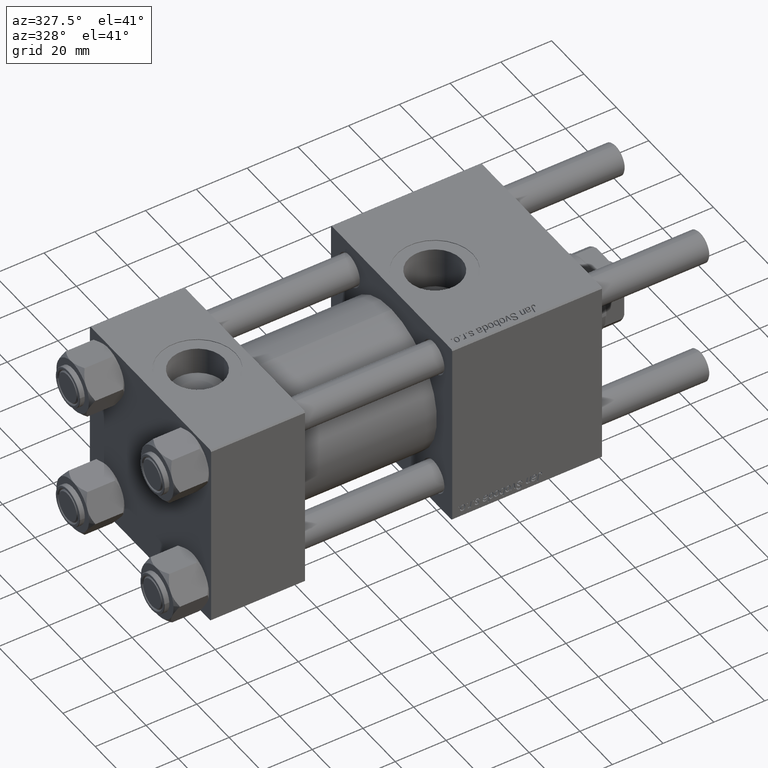
[diagram: clean part render]
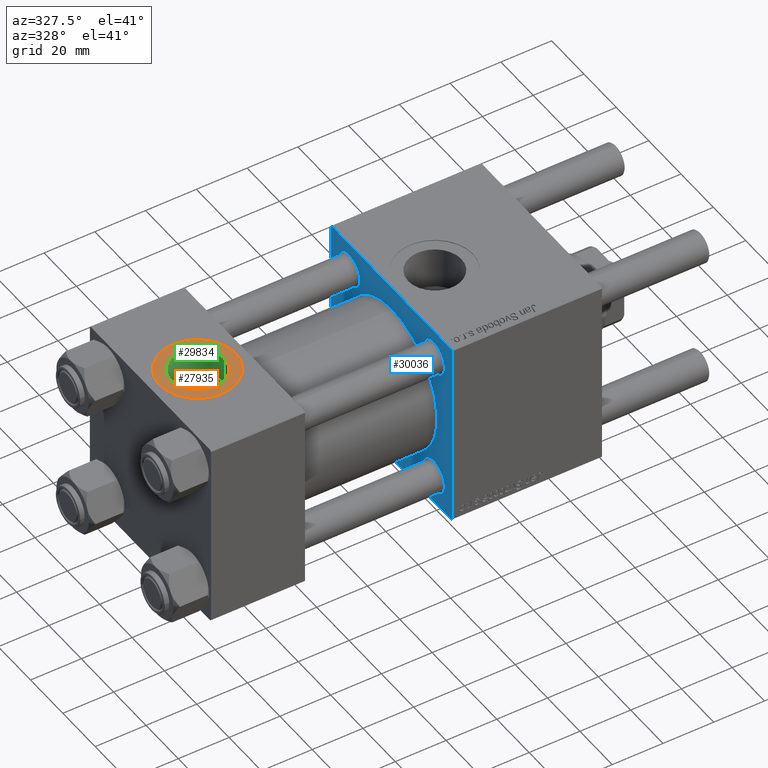
[diagram: same view with three faces highlighted in distinct colors, each labeled with its STEP entity id]
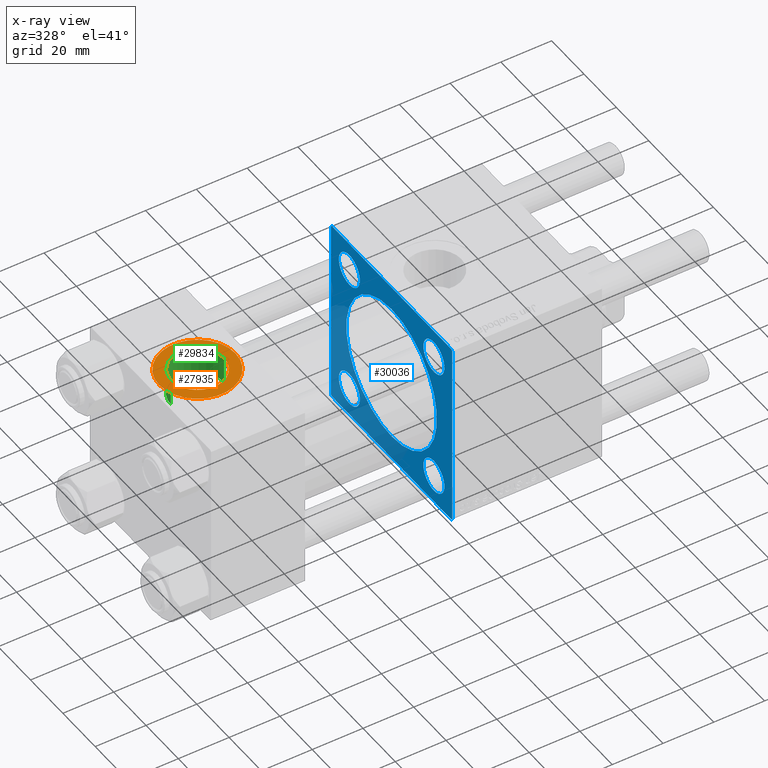
[diagram: x-ray of the same camera — body ghosted, the three highlighted faces saturated]
A machine part, auxiliary view with three faces highlighted in distinct colors.
The next image is the same camera in x-ray (body ghosted, the three faces saturated) — at least one of them is partly hidden behind the body in this view.
Their STEP definitions:

[orange] entity #27935 — the highlighted planar face has unit normal (0, 0, 1).
#656 = ORIENTED_EDGE ( 'NONE', *, *, #37611, .F. ) ;
#1025 = VERTEX_POINT ( 'NONE', #13384 ) ;
#1246 = CARTESIAN_POINT ( 'NONE',  ( 18.50000000000000000, -5.204170427930421283E-15, 37.29999999999999716 ) ) ;
#2951 = CIRCLE ( 'NONE', #37084, 10.48000000000000043 ) ;
#4575 = CARTESIAN_POINT ( 'NONE',  ( 18.50000000000000000, -5.204170427930421283E-15, 37.29999999999999716 ) ) ;
#5753 = DIRECTION ( 'NONE',  ( 0.000000000000000000, 0.000000000000000000, 1.000000000000000000 ) ) ;
#6871 = ORIENTED_EDGE ( 'NONE', *, *, #8688, .T. ) ;
#8688 = EDGE_CURVE ( 'NONE', #1025, #21719, #45997, .T. ) ;
#9089 = CARTESIAN_POINT ( 'NONE',  ( 8.019999999999999574, -3.920740582423995006E-15, 37.29999999999999716 ) ) ;
#9307 = DIRECTION ( 'NONE',  ( 1.000000000000000000, 0.000000000000000000, 0.000000000000000000 ) ) ;
#10443 = DIRECTION ( 'NONE',  ( 1.000000000000000000, 0.000000000000000000, -0.000000000000000000 ) ) ;
#10735 = PLANE ( 'NONE',  #31070 ) ;
#11069 = EDGE_LOOP ( 'NONE', ( #6871, #55615 ) ) ;
#11386 = EDGE_LOOP ( 'NONE', ( #656, #30066 ) ) ;
#12966 = EDGE_CURVE ( 'NONE', #23090, #22296, #17658, .T. ) ;
#13384 = CARTESIAN_POINT ( 'NONE',  ( 33.50000000000000000, -5.204170427930421283E-15, 37.29999999999999716 ) ) ;
#13570 = CARTESIAN_POINT ( 'NONE',  ( 18.50000000000000000, -5.204170427930421283E-15, 37.29999999999999716 ) ) ;
#15774 = CARTESIAN_POINT ( 'NONE',  ( 28.98000000000000043, -5.204170427930421283E-15, 37.29999999999999716 ) ) ;
#17658 = CIRCLE ( 'NONE', #31891, 10.48000000000000043 ) ;
#20114 = AXIS2_PLACEMENT_3D ( 'NONE', #4575, #5753, #9307 ) ;
#21076 = CIRCLE ( 'NONE', #20114, 15.00000000000000355 ) ;
#21719 = VERTEX_POINT ( 'NONE', #35005 ) ;
#22296 = VERTEX_POINT ( 'NONE', #15774 ) ;
#22763 = DIRECTION ( 'NONE',  ( 0.000000000000000000, 0.000000000000000000, 1.000000000000000000 ) ) ;
#23090 = VERTEX_POINT ( 'NONE', #9089 ) ;
#24342 = DIRECTION ( 'NONE',  ( 0.000000000000000000, 0.000000000000000000, 1.000000000000000000 ) ) ;
#26916 = DIRECTION ( 'NONE',  ( 1.000000000000000000, 0.000000000000000000, 0.000000000000000000 ) ) ;
#27935 = ADVANCED_FACE ( 'NONE', ( #51117, #33010 ), #10735, .T. ) ;
#30066 = ORIENTED_EDGE ( 'NONE', *, *, #12966, .F. ) ;
#31070 = AXIS2_PLACEMENT_3D ( 'NONE', #1246, #51982, #10443 ) ;
#31891 = AXIS2_PLACEMENT_3D ( 'NONE', #13570, #22763, #26916 ) ;
#32024 = CARTESIAN_POINT ( 'NONE',  ( 18.50000000000000000, -5.204170427930421283E-15, 37.29999999999999716 ) ) ;
#33010 = FACE_OUTER_BOUND ( 'NONE', #11069, .T. ) ;
#35005 = CARTESIAN_POINT ( 'NONE',  ( 3.499999999999997780, -3.367200229209391300E-15, 37.29999999999999716 ) ) ;
#37084 = AXIS2_PLACEMENT_3D ( 'NONE', #32024, #40955, #54009 ) ;
#37611 = EDGE_CURVE ( 'NONE', #22296, #23090, #2951, .T. ) ;
#40955 = DIRECTION ( 'NONE',  ( 0.000000000000000000, 0.000000000000000000, 1.000000000000000000 ) ) ;
#44464 = EDGE_CURVE ( 'NONE', #21719, #1025, #21076, .T. ) ;
#45997 = CIRCLE ( 'NONE', #56424, 15.00000000000000355 ) ;
#51117 = FACE_BOUND ( 'NONE', #11386, .T. ) ;
#51365 = CARTESIAN_POINT ( 'NONE',  ( 18.50000000000000000, -5.204170427930421283E-15, 37.29999999999999716 ) ) ;
#51652 = DIRECTION ( 'NONE',  ( 1.000000000000000000, 0.000000000000000000, 0.000000000000000000 ) ) ;
#51982 = DIRECTION ( 'NONE',  ( 0.000000000000000000, 0.000000000000000000, 1.000000000000000000 ) ) ;
#54009 = DIRECTION ( 'NONE',  ( 1.000000000000000000, 0.000000000000000000, 0.000000000000000000 ) ) ;
#55615 = ORIENTED_EDGE ( 'NONE', *, *, #44464, .T. ) ;
#56424 = AXIS2_PLACEMENT_3D ( 'NONE', #51365, #24342, #51652 ) ;

[blue] entity #30036 — the highlighted planar face has unit normal (-1, 0, 0).
#239 = CARTESIAN_POINT ( 'NONE',  ( 95.00000000000000000, -26.14999999999999147, -26.15000000000000924 ) ) ;
#860 = CARTESIAN_POINT ( 'NONE',  ( 95.00000000000000000, -26.14999999999999147, -19.65000000000000924 ) ) ;
#1657 = CARTESIAN_POINT ( 'NONE',  ( 95.00000000000000000, 26.14999999999999858, -26.15000000000000213 ) ) ;
#1815 = VECTOR ( 'NONE', #37494, 1000.000000000000114 ) ;
#3367 = CARTESIAN_POINT ( 'NONE',  ( 95.00000000000000000, -37.50000000000000000, 36.99999999999995026 ) ) ;
#3905 = DIRECTION ( 'NONE',  ( 1.000000000000000000, 0.000000000000000000, 0.000000000000000000 ) ) ;
#4651 = EDGE_CURVE ( 'NONE', #42052, #9552, #19692, .T. ) ;
#4728 = VERTEX_POINT ( 'NONE', #7774 ) ;
#5001 = DIRECTION ( 'NONE',  ( 0.000000000000000000, 0.000000000000000000, -1.000000000000000000 ) ) ;
#5375 = CARTESIAN_POINT ( 'NONE',  ( 95.00000000000000000, -37.50000000000000000, 37.49999999999997868 ) ) ;
#5831 = ORIENTED_EDGE ( 'NONE', *, *, #41910, .T. ) ;
#5901 = EDGE_CURVE ( 'NONE', #51417, #35060, #39477, .T. ) ;
#6039 = DIRECTION ( 'NONE',  ( -0.000000000000000000, -0.7071067811865425767, -0.7071067811865525687 ) ) ;
#6647 = CARTESIAN_POINT ( 'NONE',  ( 95.00000000000000000, 37.50000000000000000, 37.49999999999999289 ) ) ;
#6941 = EDGE_CURVE ( 'NONE', #37305, #52361, #47473, .T. ) ;
#7374 = CARTESIAN_POINT ( 'NONE',  ( 95.00000000000000000, 37.50000000000000000, 37.49999999999999289 ) ) ;
#7525 = CARTESIAN_POINT ( 'NONE',  ( 95.00000000000000000, -26.14999999999999147, 26.15000000000000924 ) ) ;
#7746 = DIRECTION ( 'NONE',  ( 0.000000000000000000, 0.7071067811865474617, -0.7071067811865474617 ) ) ;
#7774 = CARTESIAN_POINT ( 'NONE',  ( 95.00000000000000000, 26.14999999999999858, 19.64999999999999858 ) ) ;
#8277 = CARTESIAN_POINT ( 'NONE',  ( 95.00000000000000000, -26.14999999999999147, 26.15000000000000924 ) ) ;
#8319 = ORIENTED_EDGE ( 'NONE', *, *, #27179, .T. ) ;
#9552 = VERTEX_POINT ( 'NONE', #35786 ) ;
#9728 = AXIS2_PLACEMENT_3D ( 'NONE', #7525, #12259, #34532 ) ;
#10027 = DIRECTION ( 'NONE',  ( 1.000000000000000000, 0.000000000000000000, -0.000000000000000000 ) ) ;
#10086 = CARTESIAN_POINT ( 'NONE',  ( 95.00000000000000000, 26.14999999999999858, 26.15000000000000213 ) ) ;
#10285 = VECTOR ( 'NONE', #52015, 1000.000000000000000 ) ;
#10332 = AXIS2_PLACEMENT_3D ( 'NONE', #21139, #3905, #35375 ) ;
#11098 = CIRCLE ( 'NONE', #51871, 6.500000000000002665 ) ;
#11273 = VECTOR ( 'NONE', #7746, 1000.000000000000114 ) ;
#11383 = LINE ( 'NONE', #6647, #35888 ) ;
#11633 = EDGE_LOOP ( 'NONE', ( #15478, #31766, #56868, #8319, #48224, #56792, #46735, #48409 ) ) ;
#12160 = EDGE_LOOP ( 'NONE', ( #44023, #34547 ) ) ;
#12175 = AXIS2_PLACEMENT_3D ( 'NONE', #57488, #12631, #17673 ) ;
#12259 = DIRECTION ( 'NONE',  ( 1.000000000000000000, 0.000000000000000000, -0.000000000000000000 ) ) ;
#12631 = DIRECTION ( 'NONE',  ( -1.000000000000000000, -0.000000000000000000, 0.000000000000000000 ) ) ;
#12660 = VERTEX_POINT ( 'NONE', #16049 ) ;
#12697 = VECTOR ( 'NONE', #20774, 1000.000000000000000 ) ;
#13518 = CARTESIAN_POINT ( 'NONE',  ( 95.00000000000000000, 8.269258236473776482E-16, -28.00000000000000000 ) ) ;
#14944 = CARTESIAN_POINT ( 'NONE',  ( 95.00000000000000000, 37.00000000000000000, 37.49999999999999289 ) ) ;
#15478 = ORIENTED_EDGE ( 'NONE', *, *, #29759, .T. ) ;
#15512 = CARTESIAN_POINT ( 'NONE',  ( 95.00000000000000000, 37.50000000000000000, -37.50000000000000000 ) ) ;
#16049 = CARTESIAN_POINT ( 'NONE',  ( 95.00000000000000000, 37.50000000000000000, 36.99999999999999289 ) ) ;
#16271 = DIRECTION ( 'NONE',  ( 0.000000000000000000, -1.000000000000000000, -1.850371707708594316E-16 ) ) ;
#16500 = FACE_BOUND ( 'NONE', #45378, .T. ) ;
#16886 = DIRECTION ( 'NONE',  ( 0.000000000000000000, 0.000000000000000000, 1.000000000000000000 ) ) ;
#17673 = DIRECTION ( 'NONE',  ( 0.000000000000000000, 0.000000000000000000, 1.000000000000000000 ) ) ;
#17950 = VECTOR ( 'NONE', #29095, 1000.000000000000000 ) ;
#18794 = EDGE_CURVE ( 'NONE', #28502, #37615, #27115, .T. ) ;
#19692 = LINE ( 'NONE', #24722, #47758 ) ;
#19770 = DIRECTION ( 'NONE',  ( 1.000000000000000000, 0.000000000000000000, -0.000000000000000000 ) ) ;
#20654 = EDGE_LOOP ( 'NONE', ( #26829, #45370 ) ) ;
#20774 = DIRECTION ( 'NONE',  ( 0.000000000000000000, -0.7071067811865671127, 0.7071067811865279218 ) ) ;
#21002 = EDGE_CURVE ( 'NONE', #49021, #35343, #11098, .T. ) ;
#21139 = CARTESIAN_POINT ( 'NONE',  ( 95.00000000000000000, -2.602085213965210642E-15, 0.000000000000000000 ) ) ;
#21244 = VERTEX_POINT ( 'NONE', #21785 ) ;
#21682 = EDGE_CURVE ( 'NONE', #46271, #28551, #23472, .T. ) ;
#21785 = CARTESIAN_POINT ( 'NONE',  ( 95.00000000000000000, -2.602085213965210642E-15, 28.00000000000000000 ) ) ;
#22234 = EDGE_LOOP ( 'NONE', ( #5831, #48481 ) ) ;
#23352 = DIRECTION ( 'NONE',  ( 0.000000000000000000, 0.000000000000000000, 1.000000000000000000 ) ) ;
#23472 = CIRCLE ( 'NONE', #27227, 6.500000000000002665 ) ;
#23537 = ORIENTED_EDGE ( 'NONE', *, *, #27105, .T. ) ;
#23736 = EDGE_CURVE ( 'NONE', #38267, #4728, #33014, .T. ) ;
#24066 = LINE ( 'NONE', #5375, #17950 ) ;
#24446 = CIRCLE ( 'NONE', #36927, 6.500000000000002665 ) ;
#24722 = CARTESIAN_POINT ( 'NONE',  ( 95.00000000000000000, 37.25000000000026290, -37.24999999999974420 ) ) ;
#25307 = EDGE_CURVE ( 'NONE', #12660, #42052, #11383, .T. ) ;
#25893 = ORIENTED_EDGE ( 'NONE', *, *, #18794, .T. ) ;
#26829 = ORIENTED_EDGE ( 'NONE', *, *, #51126, .T. ) ;
#27027 = VERTEX_POINT ( 'NONE', #3367 ) ;
#27082 = DIRECTION ( 'NONE',  ( 1.000000000000000000, 0.000000000000000000, -0.000000000000000000 ) ) ;
#27105 = EDGE_CURVE ( 'NONE', #37615, #28502, #54799, .T. ) ;
#27115 = CIRCLE ( 'NONE', #38538, 6.500000000000002665 ) ;
#27179 = EDGE_CURVE ( 'NONE', #27027, #52361, #41952, .T. ) ;
#27227 = AXIS2_PLACEMENT_3D ( 'NONE', #8277, #39466, #16886 ) ;
#27726 = EDGE_CURVE ( 'NONE', #35343, #49021, #24446, .T. ) ;
#28123 = DIRECTION ( 'NONE',  ( 0.000000000000000000, 0.000000000000000000, 1.000000000000000000 ) ) ;
#28379 = CIRCLE ( 'NONE', #10332, 28.00000000000000000 ) ;
#28502 = VERTEX_POINT ( 'NONE', #47985 ) ;
#28551 = VERTEX_POINT ( 'NONE', #49730 ) ;
#28901 = VECTOR ( 'NONE', #16271, 1000.000000000000000 ) ;
#29057 = CARTESIAN_POINT ( 'NONE',  ( 95.00000000000000000, 37.50000000000000000, -36.99999999999999289 ) ) ;
#29095 = DIRECTION ( 'NONE',  ( 0.000000000000000000, -9.251858538542972814E-17, -1.000000000000000000 ) ) ;
#29759 = EDGE_CURVE ( 'NONE', #9552, #51417, #34489, .T. ) ;
#30036 = ADVANCED_FACE ( 'NONE', ( #49145, #39658, #16500, #35777, #30154, #40242 ), #39369, .T. ) ;
#30154 = FACE_BOUND ( 'NONE', #20654, .T. ) ;
#30926 = DIRECTION ( 'NONE',  ( 0.000000000000000000, 0.000000000000000000, 1.000000000000000000 ) ) ;
#31046 = CARTESIAN_POINT ( 'NONE',  ( 95.00000000000000000, -36.99999999999998579, -37.50000000000000000 ) ) ;
#31133 = CARTESIAN_POINT ( 'NONE',  ( 95.00000000000000000, 26.14999999999999858, -19.65000000000000213 ) ) ;
#31542 = DIRECTION ( 'NONE',  ( 0.000000000000000000, 0.000000000000000000, 1.000000000000000000 ) ) ;
#31766 = ORIENTED_EDGE ( 'NONE', *, *, #5901, .T. ) ;
#32333 = EDGE_CURVE ( 'NONE', #57532, #21244, #28379, .T. ) ;
#32766 = ORIENTED_EDGE ( 'NONE', *, *, #27726, .T. ) ;
#33014 = CIRCLE ( 'NONE', #36787, 6.500000000000002665 ) ;
#33072 = CIRCLE ( 'NONE', #45411, 6.500000000000002665 ) ;
#33130 = EDGE_CURVE ( 'NONE', #27027, #35060, #24066, .T. ) ;
#34489 = LINE ( 'NONE', #15512, #10285 ) ;
#34525 = DIRECTION ( 'NONE',  ( 0.000000000000000000, 0.000000000000000000, -1.000000000000000000 ) ) ;
#34532 = DIRECTION ( 'NONE',  ( 0.000000000000000000, 0.000000000000000000, 1.000000000000000000 ) ) ;
#34547 = ORIENTED_EDGE ( 'NONE', *, *, #56672, .T. ) ;
#35060 = VERTEX_POINT ( 'NONE', #48469 ) ;
#35343 = VERTEX_POINT ( 'NONE', #860 ) ;
#35375 = DIRECTION ( 'NONE',  ( 0.000000000000000000, 0.000000000000000000, -1.000000000000000000 ) ) ;
#35777 = FACE_BOUND ( 'NONE', #41144, .T. ) ;
#35786 = CARTESIAN_POINT ( 'NONE',  ( 95.00000000000000000, 37.00000000000000000, -37.50000000000000000 ) ) ;
#35888 = VECTOR ( 'NONE', #34525, 1000.000000000000000 ) ;
#36604 = CARTESIAN_POINT ( 'NONE',  ( 95.00000000000000000, -37.24999999999997158, 37.24999999999997158 ) ) ;
#36787 = AXIS2_PLACEMENT_3D ( 'NONE', #49338, #36862, #30926 ) ;
#36862 = DIRECTION ( 'NONE',  ( 1.000000000000000000, 0.000000000000000000, -0.000000000000000000 ) ) ;
#36927 = AXIS2_PLACEMENT_3D ( 'NONE', #41784, #37620, #23352 ) ;
#37305 = VERTEX_POINT ( 'NONE', #14944 ) ;
#37494 = DIRECTION ( 'NONE',  ( -0.000000000000000000, 0.7071067811865474617, 0.7071067811865474617 ) ) ;
#37615 = VERTEX_POINT ( 'NONE', #31133 ) ;
#37620 = DIRECTION ( 'NONE',  ( 1.000000000000000000, 0.000000000000000000, -0.000000000000000000 ) ) ;
#38267 = VERTEX_POINT ( 'NONE', #39209 ) ;
#38538 = AXIS2_PLACEMENT_3D ( 'NONE', #1657, #19770, #56000 ) ;
#38848 = ORIENTED_EDGE ( 'NONE', *, *, #21002, .T. ) ;
#39209 = CARTESIAN_POINT ( 'NONE',  ( 95.00000000000000000, 26.14999999999999858, 32.65000000000001279 ) ) ;
#39369 = PLANE ( 'NONE',  #12175 ) ;
#39466 = DIRECTION ( 'NONE',  ( 1.000000000000000000, 0.000000000000000000, -0.000000000000000000 ) ) ;
#39477 = LINE ( 'NONE', #44525, #12697 ) ;
#39658 = FACE_BOUND ( 'NONE', #12160, .T. ) ;
#40242 = FACE_OUTER_BOUND ( 'NONE', #11633, .T. ) ;
#40931 = CARTESIAN_POINT ( 'NONE',  ( 95.00000000000000000, -2.602085213965210642E-15, 0.000000000000000000 ) ) ;
#41144 = EDGE_LOOP ( 'NONE', ( #32766, #38848 ) ) ;
#41784 = CARTESIAN_POINT ( 'NONE',  ( 95.00000000000000000, -26.14999999999999147, -26.15000000000000924 ) ) ;
#41910 = EDGE_CURVE ( 'NONE', #28551, #46271, #48628, .T. ) ;
#41952 = LINE ( 'NONE', #36604, #1815 ) ;
#42052 = VERTEX_POINT ( 'NONE', #29057 ) ;
#43378 = CARTESIAN_POINT ( 'NONE',  ( 95.00000000000000000, -36.99999999999997158, 37.49999999999997868 ) ) ;
#44023 = ORIENTED_EDGE ( 'NONE', *, *, #23736, .T. ) ;
#44431 = AXIS2_PLACEMENT_3D ( 'NONE', #40931, #54871, #5001 ) ;
#44525 = CARTESIAN_POINT ( 'NONE',  ( 95.00000000000000000, -37.24999999999896261, -37.25000000000103029 ) ) ;
#45370 = ORIENTED_EDGE ( 'NONE', *, *, #32333, .T. ) ;
#45378 = EDGE_LOOP ( 'NONE', ( #23537, #25893 ) ) ;
#45411 = AXIS2_PLACEMENT_3D ( 'NONE', #10086, #46324, #55520 ) ;
#46271 = VERTEX_POINT ( 'NONE', #54458 ) ;
#46324 = DIRECTION ( 'NONE',  ( 1.000000000000000000, 0.000000000000000000, -0.000000000000000000 ) ) ;
#46735 = ORIENTED_EDGE ( 'NONE', *, *, #25307, .T. ) ;
#47473 = LINE ( 'NONE', #7374, #28901 ) ;
#47758 = VECTOR ( 'NONE', #6039, 999.9999999999998863 ) ;
#47985 = CARTESIAN_POINT ( 'NONE',  ( 95.00000000000000000, 26.14999999999999858, -32.65000000000000568 ) ) ;
#48224 = ORIENTED_EDGE ( 'NONE', *, *, #6941, .F. ) ;
#48409 = ORIENTED_EDGE ( 'NONE', *, *, #4651, .T. ) ;
#48469 = CARTESIAN_POINT ( 'NONE',  ( 95.00000000000000000, -37.50000000000000711, -37.00000000000000711 ) ) ;
#48481 = ORIENTED_EDGE ( 'NONE', *, *, #21682, .T. ) ;
#48628 = CIRCLE ( 'NONE', #9728, 6.500000000000002665 ) ;
#48697 = CARTESIAN_POINT ( 'NONE',  ( 95.00000000000000000, -26.14999999999999147, -32.65000000000001279 ) ) ;
#48710 = CARTESIAN_POINT ( 'NONE',  ( 95.00000000000000000, 37.25000000000000000, 37.25000000000000000 ) ) ;
#49021 = VERTEX_POINT ( 'NONE', #48697 ) ;
#49145 = FACE_BOUND ( 'NONE', #22234, .T. ) ;
#49338 = CARTESIAN_POINT ( 'NONE',  ( 95.00000000000000000, 26.14999999999999858, 26.15000000000000213 ) ) ;
#49730 = CARTESIAN_POINT ( 'NONE',  ( 95.00000000000000000, -26.14999999999999147, 32.65000000000001279 ) ) ;
#50171 = AXIS2_PLACEMENT_3D ( 'NONE', #58584, #27082, #31542 ) ;
#51126 = EDGE_CURVE ( 'NONE', #21244, #57532, #52930, .T. ) ;
#51417 = VERTEX_POINT ( 'NONE', #31046 ) ;
#51871 = AXIS2_PLACEMENT_3D ( 'NONE', #239, #10027, #28123 ) ;
#52015 = DIRECTION ( 'NONE',  ( 0.000000000000000000, -1.000000000000000000, 0.000000000000000000 ) ) ;
#52361 = VERTEX_POINT ( 'NONE', #43378 ) ;
#52930 = CIRCLE ( 'NONE', #44431, 28.00000000000000000 ) ;
#54458 = CARTESIAN_POINT ( 'NONE',  ( 95.00000000000000000, -26.14999999999999147, 19.65000000000000568 ) ) ;
#54799 = CIRCLE ( 'NONE', #50171, 6.500000000000002665 ) ;
#54871 = DIRECTION ( 'NONE',  ( 1.000000000000000000, 0.000000000000000000, 0.000000000000000000 ) ) ;
#55520 = DIRECTION ( 'NONE',  ( 0.000000000000000000, 0.000000000000000000, 1.000000000000000000 ) ) ;
#56000 = DIRECTION ( 'NONE',  ( 0.000000000000000000, 0.000000000000000000, 1.000000000000000000 ) ) ;
#56672 = EDGE_CURVE ( 'NONE', #4728, #38267, #33072, .T. ) ;
#56792 = ORIENTED_EDGE ( 'NONE', *, *, #57157, .T. ) ;
#56868 = ORIENTED_EDGE ( 'NONE', *, *, #33130, .F. ) ;
#57157 = EDGE_CURVE ( 'NONE', #37305, #12660, #57630, .T. ) ;
#57488 = CARTESIAN_POINT ( 'NONE',  ( 95.00000000000000000, 0.000000000000000000, 0.000000000000000000 ) ) ;
#57532 = VERTEX_POINT ( 'NONE', #13518 ) ;
#57630 = LINE ( 'NONE', #48710, #11273 ) ;
#58584 = CARTESIAN_POINT ( 'NONE',  ( 95.00000000000000000, 26.14999999999999858, -26.15000000000000213 ) ) ;

[green] entity #29834 — the highlighted cylindrical surface (edge-blend (fillet) strip) has radius 10.48 mm, axis along (0, 0, 1).
#1688 = CARTESIAN_POINT ( 'NONE',  ( 28.98000000000000043, -5.204170427930421283E-15, 26.69999999999999929 ) ) ;
#1738 = DIRECTION ( 'NONE',  ( 1.000000000000000000, 0.000000000000000000, 0.000000000000000000 ) ) ;
#2951 = CIRCLE ( 'NONE', #37084, 10.48000000000000043 ) ;
#4878 = VECTOR ( 'NONE', #33501, 1000.000000000000000 ) ;
#5520 = AXIS2_PLACEMENT_3D ( 'NONE', #24296, #42432, #1738 ) ;
#5714 = EDGE_LOOP ( 'NONE', ( #17534, #14663, #40017, #55280 ) ) ;
#8345 = DIRECTION ( 'NONE',  ( 1.000000000000000000, 0.000000000000000000, 0.000000000000000000 ) ) ;
#8468 = VERTEX_POINT ( 'NONE', #35068 ) ;
#9089 = CARTESIAN_POINT ( 'NONE',  ( 8.019999999999999574, -3.920740582423995006E-15, 37.29999999999999716 ) ) ;
#9166 = CARTESIAN_POINT ( 'NONE',  ( 8.019999999999999574, -3.920740582423995006E-15, 26.69999999999999929 ) ) ;
#14663 = ORIENTED_EDGE ( 'NONE', *, *, #23933, .F. ) ;
#15774 = CARTESIAN_POINT ( 'NONE',  ( 28.98000000000000043, -5.204170427930421283E-15, 37.29999999999999716 ) ) ;
#17534 = ORIENTED_EDGE ( 'NONE', *, *, #37644, .F. ) ;
#19068 = VERTEX_POINT ( 'NONE', #20852 ) ;
#20852 = CARTESIAN_POINT ( 'NONE',  ( 28.98000000000000043, -5.204170427930421283E-15, 26.69999999999999929 ) ) ;
#22296 = VERTEX_POINT ( 'NONE', #15774 ) ;
#23090 = VERTEX_POINT ( 'NONE', #9089 ) ;
#23507 = CIRCLE ( 'NONE', #5520, 10.48000000000000043 ) ;
#23933 = EDGE_CURVE ( 'NONE', #19068, #8468, #23507, .T. ) ;
#24296 = CARTESIAN_POINT ( 'NONE',  ( 18.50000000000000000, -5.204170427930421283E-15, 26.69999999999999929 ) ) ;
#29834 = ADVANCED_FACE ( 'NONE', ( #48442 ), #44282, .F. ) ;
#31975 = DIRECTION ( 'NONE',  ( -0.000000000000000000, -0.000000000000000000, 1.000000000000000000 ) ) ;
#32024 = CARTESIAN_POINT ( 'NONE',  ( 18.50000000000000000, -5.204170427930421283E-15, 37.29999999999999716 ) ) ;
#32715 = VECTOR ( 'NONE', #31975, 1000.000000000000000 ) ;
#33162 = LINE ( 'NONE', #1688, #32715 ) ;
#33501 = DIRECTION ( 'NONE',  ( -0.000000000000000000, -0.000000000000000000, 1.000000000000000000 ) ) ;
#35068 = CARTESIAN_POINT ( 'NONE',  ( 8.019999999999999574, -3.920740582423995006E-15, 26.69999999999999929 ) ) ;
#37084 = AXIS2_PLACEMENT_3D ( 'NONE', #32024, #40955, #54009 ) ;
#37611 = EDGE_CURVE ( 'NONE', #22296, #23090, #2951, .T. ) ;
#37644 = EDGE_CURVE ( 'NONE', #8468, #23090, #45116, .T. ) ;
#40017 = ORIENTED_EDGE ( 'NONE', *, *, #49663, .T. ) ;
#40955 = DIRECTION ( 'NONE',  ( 0.000000000000000000, 0.000000000000000000, 1.000000000000000000 ) ) ;
#42432 = DIRECTION ( 'NONE',  ( 0.000000000000000000, 0.000000000000000000, 1.000000000000000000 ) ) ;
#44282 = CYLINDRICAL_SURFACE ( 'NONE', #50126, 10.48000000000000043 ) ;
#45116 = LINE ( 'NONE', #9166, #4878 ) ;
#45170 = DIRECTION ( 'NONE',  ( -0.000000000000000000, -0.000000000000000000, 1.000000000000000000 ) ) ;
#48442 = FACE_OUTER_BOUND ( 'NONE', #5714, .T. ) ;
#49663 = EDGE_CURVE ( 'NONE', #19068, #22296, #33162, .T. ) ;
#50126 = AXIS2_PLACEMENT_3D ( 'NONE', #53766, #45170, #8345 ) ;
#53766 = CARTESIAN_POINT ( 'NONE',  ( 18.50000000000000000, -5.204170427930421283E-15, 26.69999999999999929 ) ) ;
#54009 = DIRECTION ( 'NONE',  ( 1.000000000000000000, 0.000000000000000000, 0.000000000000000000 ) ) ;
#55280 = ORIENTED_EDGE ( 'NONE', *, *, #37611, .T. ) ;